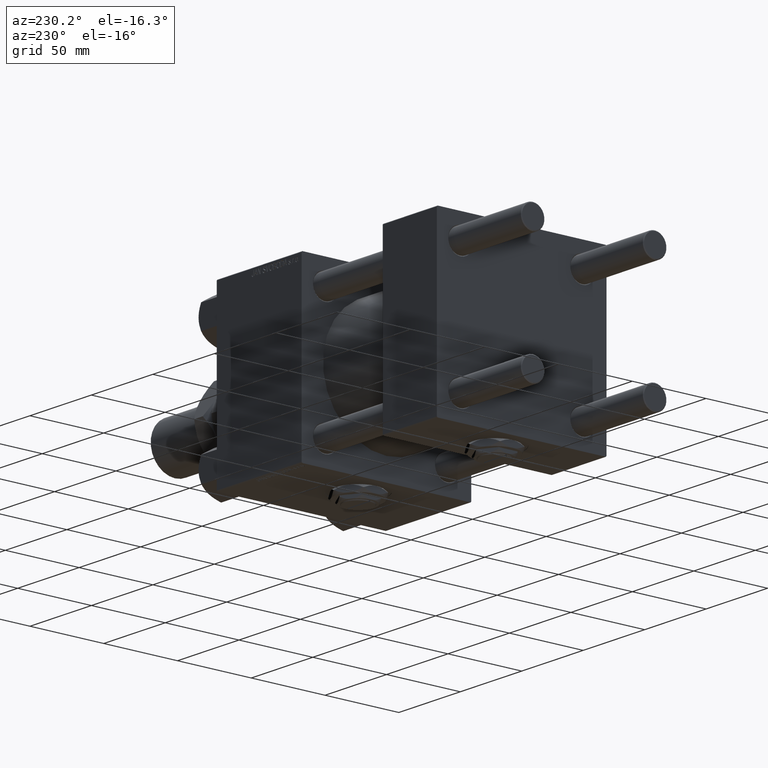
[diagram: clean part render]
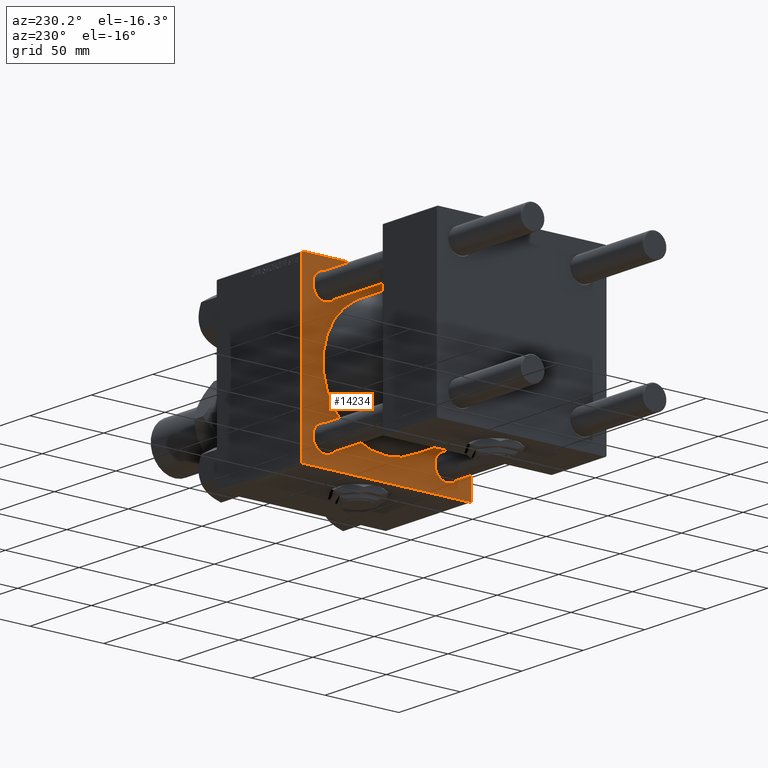
[diagram: same view with one face highlighted and labeled with its STEP entity id]
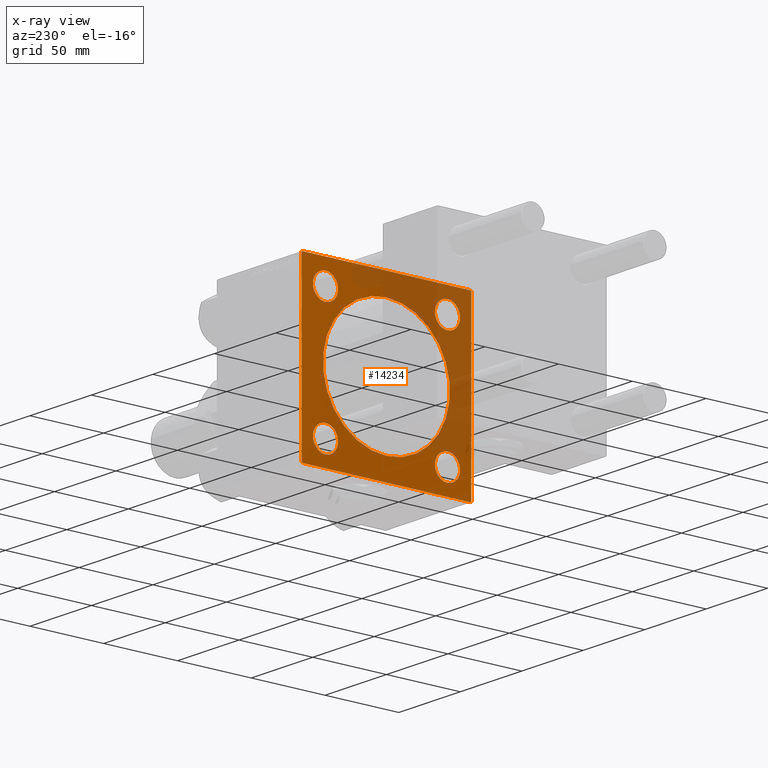
[diagram: x-ray of the same camera — body ghosted, the highlighted face saturated]
A machine part, auxiliary view. The second image highlights one B-rep face of the part: STEP entity #14234.
The next image is the same camera in x-ray: the body ghosted, the highlighted face saturated — about 38% of this face is hidden behind the body in this view.
In plain terms, the highlighted planar face has unit normal (-1, 0, 0).
Its self-contained STEP definition (entity closure, byte-faithful):
#80 = EDGE_LOOP ( 'NONE', ( #13773, #46746 ) ) ;
#424 = EDGE_CURVE ( 'NONE', #36008, #50707, #28993, .T. ) ;
#893 = CARTESIAN_POINT ( 'NONE',  ( 110.0000000000000000, 41.34999999999999432, 41.35000000000000142 ) ) ;
#982 = DIRECTION ( 'NONE',  ( 0.000000000000000000, -1.000000000000000000, -1.206764157201257291E-16 ) ) ;
#1286 = CIRCLE ( 'NONE', #2151, 43.00000000000000000 ) ;
#1448 = VERTEX_POINT ( 'NONE', #47599 ) ;
#1529 = EDGE_CURVE ( 'NONE', #25501, #38202, #15654, .T. ) ;
#1707 = CARTESIAN_POINT ( 'NONE',  ( 110.0000000000000000, 57.50000000000000000, 57.00000000000000711 ) ) ;
#1978 = ORIENTED_EDGE ( 'NONE', *, *, #4425, .T. ) ;
#2151 = AXIS2_PLACEMENT_3D ( 'NONE', #13380, #51836, #39286 ) ;
#2224 = CIRCLE ( 'NONE', #21372, 8.500000000000007105 ) ;
#3756 = AXIS2_PLACEMENT_3D ( 'NONE', #893, #9601, #30098 ) ;
#3872 = CARTESIAN_POINT ( 'NONE',  ( 110.0000000000000000, -57.49999999999999289, -56.99999999999997868 ) ) ;
#4378 = EDGE_CURVE ( 'NONE', #13017, #17928, #5188, .T. ) ;
#4401 = CIRCLE ( 'NONE', #18342, 8.500000000000007105 ) ;
#4425 = EDGE_CURVE ( 'NONE', #45716, #22131, #1286, .T. ) ;
#4584 = CARTESIAN_POINT ( 'NONE',  ( 110.0000000000000000, 41.34999999999999432, 41.35000000000000142 ) ) ;
#4875 = CARTESIAN_POINT ( 'NONE',  ( 110.0000000000000000, 57.50000000000000000, 57.50000000000000711 ) ) ;
#5188 = LINE ( 'NONE', #30317, #14317 ) ;
#5595 = LINE ( 'NONE', #9160, #43928 ) ;
#6101 = EDGE_CURVE ( 'NONE', #22131, #45716, #44888, .T. ) ;
#6352 = VERTEX_POINT ( 'NONE', #18136 ) ;
#6721 = EDGE_CURVE ( 'NONE', #53552, #38071, #2224, .T. ) ;
#7058 = DIRECTION ( 'NONE',  ( 0.000000000000000000, -0.7071067811865721087, 0.7071067811865230368 ) ) ;
#7255 = CARTESIAN_POINT ( 'NONE',  ( 110.0000000000000000, -41.34999999999998721, -49.85000000000002274 ) ) ;
#7411 = EDGE_CURVE ( 'NONE', #1448, #6352, #21411, .T. ) ;
#7662 = CARTESIAN_POINT ( 'NONE',  ( 110.0000000000000000, 57.00000000000000000, -57.49999999999996447 ) ) ;
#7919 = CARTESIAN_POINT ( 'NONE',  ( 110.0000000000000000, -41.34999999999998721, -41.35000000000000853 ) ) ;
#7997 = DIRECTION ( 'NONE',  ( 0.000000000000000000, 0.000000000000000000, 1.000000000000000000 ) ) ;
#8155 = EDGE_CURVE ( 'NONE', #37015, #24441, #39762, .T. ) ;
#8486 = VECTOR ( 'NONE', #30864, 1000.000000000000000 ) ;
#9073 = DIRECTION ( 'NONE',  ( 1.000000000000000000, -0.000000000000000000, 0.000000000000000000 ) ) ;
#9160 = CARTESIAN_POINT ( 'NONE',  ( 110.0000000000000000, 57.50000000000000000, 57.50000000000000711 ) ) ;
#9436 = ORIENTED_EDGE ( 'NONE', *, *, #20476, .T. ) ;
#9601 = DIRECTION ( 'NONE',  ( 1.000000000000000000, -0.000000000000000000, 0.000000000000000000 ) ) ;
#10264 = DIRECTION ( 'NONE',  ( -1.000000000000000000, 0.000000000000000000, -0.000000000000000000 ) ) ;
#10481 = VERTEX_POINT ( 'NONE', #3872 ) ;
#10686 = DIRECTION ( 'NONE',  ( 0.000000000000000000, 0.000000000000000000, 1.000000000000000000 ) ) ;
#10889 = CARTESIAN_POINT ( 'NONE',  ( 110.0000000000000000, -57.24999999999798916, -57.25000000000196820 ) ) ;
#10991 = CARTESIAN_POINT ( 'NONE',  ( 110.0000000000000000, 41.34999999999999432, -49.85000000000001563 ) ) ;
#11222 = CARTESIAN_POINT ( 'NONE',  ( 110.0000000000000000, -41.34999999999998721, -41.35000000000000853 ) ) ;
#11339 = CARTESIAN_POINT ( 'NONE',  ( 110.0000000000000000, 0.000000000000000000, 0.000000000000000000 ) ) ;
#11782 = VERTEX_POINT ( 'NONE', #14399 ) ;
#12417 = DIRECTION ( 'NONE',  ( 0.000000000000000000, 0.000000000000000000, -1.000000000000000000 ) ) ;
#12432 = CARTESIAN_POINT ( 'NONE',  ( 110.0000000000000000, 0.000000000000000000, 0.000000000000000000 ) ) ;
#12763 = ORIENTED_EDGE ( 'NONE', *, *, #26348, .T. ) ;
#13017 = VERTEX_POINT ( 'NONE', #50822 ) ;
#13065 = LINE ( 'NONE', #4875, #26307 ) ;
#13225 = ORIENTED_EDGE ( 'NONE', *, *, #20858, .F. ) ;
#13252 = CARTESIAN_POINT ( 'NONE',  ( 110.0000000000000000, 41.34999999999999432, -32.84999999999999432 ) ) ;
#13380 = CARTESIAN_POINT ( 'NONE',  ( 110.0000000000000000, 0.000000000000000000, 0.000000000000000000 ) ) ;
#13570 = AXIS2_PLACEMENT_3D ( 'NONE', #42425, #19158, #10686 ) ;
#13773 = ORIENTED_EDGE ( 'NONE', *, *, #6721, .T. ) ;
#13857 = DIRECTION ( 'NONE',  ( 0.000000000000000000, -1.000000000000000000, -1.206764157201257291E-16 ) ) ;
#14234 = ADVANCED_FACE ( 'NONE', ( #35104, #48701, #52268, #43540, #40250, #31303 ), #19530, .T. ) ;
#14317 = VECTOR ( 'NONE', #21582, 1000.000000000000000 ) ;
#14399 = CARTESIAN_POINT ( 'NONE',  ( 110.0000000000000000, -56.99999999999995737, -57.49999999999997868 ) ) ;
#14909 = ORIENTED_EDGE ( 'NONE', *, *, #29943, .F. ) ;
#14966 = VECTOR ( 'NONE', #13857, 1000.000000000000000 ) ;
#15234 = DIRECTION ( 'NONE',  ( 0.000000000000000000, 0.000000000000000000, -1.000000000000000000 ) ) ;
#15654 = LINE ( 'NONE', #41568, #52526 ) ;
#16276 = AXIS2_PLACEMENT_3D ( 'NONE', #16724, #9073, #7997 ) ;
#16724 = CARTESIAN_POINT ( 'NONE',  ( 110.0000000000000000, 41.34999999999999432, -41.35000000000000142 ) ) ;
#17928 = VERTEX_POINT ( 'NONE', #7662 ) ;
#17979 = AXIS2_PLACEMENT_3D ( 'NONE', #41635, #33734, #29638 ) ;
#18136 = CARTESIAN_POINT ( 'NONE',  ( 110.0000000000000000, -41.34999999999998721, 32.85000000000000142 ) ) ;
#18342 = AXIS2_PLACEMENT_3D ( 'NONE', #51683, #52483, #31520 ) ;
#18520 = EDGE_CURVE ( 'NONE', #6352, #1448, #4401, .T. ) ;
#18546 = CIRCLE ( 'NONE', #3756, 8.500000000000007105 ) ;
#18660 = ORIENTED_EDGE ( 'NONE', *, *, #7411, .T. ) ;
#19158 = DIRECTION ( 'NONE',  ( 1.000000000000000000, -0.000000000000000000, 0.000000000000000000 ) ) ;
#19373 = LINE ( 'NONE', #26491, #8486 ) ;
#19530 = PLANE ( 'NONE',  #45032 ) ;
#20019 = DIRECTION ( 'NONE',  ( 0.000000000000000000, 0.7071067811865672237, -0.7071067811865279218 ) ) ;
#20211 = ORIENTED_EDGE ( 'NONE', *, *, #8155, .T. ) ;
#20476 = EDGE_CURVE ( 'NONE', #17928, #11782, #31072, .T. ) ;
#20858 = EDGE_CURVE ( 'NONE', #35114, #10481, #48951, .T. ) ;
#21372 = AXIS2_PLACEMENT_3D ( 'NONE', #11222, #36335, #45299 ) ;
#21411 = CIRCLE ( 'NONE', #13570, 8.500000000000007105 ) ;
#21582 = DIRECTION ( 'NONE',  ( -0.000000000000000000, -0.7071067811865279218, -0.7071067811865672237 ) ) ;
#22131 = VERTEX_POINT ( 'NONE', #48040 ) ;
#22340 = DIRECTION ( 'NONE',  ( 0.000000000000000000, 0.000000000000000000, -1.000000000000000000 ) ) ;
#24248 = ORIENTED_EDGE ( 'NONE', *, *, #49734, .T. ) ;
#24441 = VERTEX_POINT ( 'NONE', #13252 ) ;
#24568 = EDGE_LOOP ( 'NONE', ( #9436, #44617, #13225, #51188, #14909, #38922, #24248, #53844 ) ) ;
#25501 = VERTEX_POINT ( 'NONE', #47555 ) ;
#26072 = ORIENTED_EDGE ( 'NONE', *, *, #18520, .T. ) ;
#26307 = VECTOR ( 'NONE', #22340, 1000.000000000000000 ) ;
#26348 = EDGE_CURVE ( 'NONE', #50707, #36008, #18546, .T. ) ;
#26384 = EDGE_LOOP ( 'NONE', ( #1978, #51260 ) ) ;
#26406 = DIRECTION ( 'NONE',  ( 1.000000000000000000, -0.000000000000000000, 0.000000000000000000 ) ) ;
#26491 = CARTESIAN_POINT ( 'NONE',  ( 110.0000000000000000, -57.25000000000117240, 57.24999999999879208 ) ) ;
#27816 = DIRECTION ( 'NONE',  ( 1.000000000000000000, 0.000000000000000000, 0.000000000000000000 ) ) ;
#28260 = CARTESIAN_POINT ( 'NONE',  ( 110.0000000000000000, -57.49999999999999289, 57.49999999999999289 ) ) ;
#28988 = ORIENTED_EDGE ( 'NONE', *, *, #39334, .T. ) ;
#28993 = CIRCLE ( 'NONE', #53374, 8.500000000000007105 ) ;
#29571 = CARTESIAN_POINT ( 'NONE',  ( 110.0000000000000000, -57.49999999999999289, 56.99999999999996447 ) ) ;
#29638 = DIRECTION ( 'NONE',  ( 0.000000000000000000, 0.000000000000000000, 1.000000000000000000 ) ) ;
#29943 = EDGE_CURVE ( 'NONE', #25501, #40957, #5595, .T. ) ;
#30098 = DIRECTION ( 'NONE',  ( 0.000000000000000000, 0.000000000000000000, 1.000000000000000000 ) ) ;
#30240 = DIRECTION ( 'NONE',  ( 0.000000000000000000, 0.000000000000000000, 1.000000000000000000 ) ) ;
#30317 = CARTESIAN_POINT ( 'NONE',  ( 110.0000000000000000, 57.25000000000157030, -57.24999999999838707 ) ) ;
#30697 = CARTESIAN_POINT ( 'NONE',  ( 110.0000000000000000, -41.34999999999998721, -32.85000000000000142 ) ) ;
#30864 = DIRECTION ( 'NONE',  ( -0.000000000000000000, 0.7071067811865328068, 0.7071067811865622277 ) ) ;
#31072 = LINE ( 'NONE', #52046, #14966 ) ;
#31113 = LINE ( 'NONE', #10889, #40001 ) ;
#31303 = FACE_OUTER_BOUND ( 'NONE', #24568, .T. ) ;
#31520 = DIRECTION ( 'NONE',  ( 0.000000000000000000, 0.000000000000000000, 1.000000000000000000 ) ) ;
#32002 = CIRCLE ( 'NONE', #16276, 8.500000000000007105 ) ;
#33734 = DIRECTION ( 'NONE',  ( 1.000000000000000000, -0.000000000000000000, 0.000000000000000000 ) ) ;
#34296 = CARTESIAN_POINT ( 'NONE',  ( 110.0000000000000000, 41.34999999999999432, 32.84999999999999432 ) ) ;
#35104 = FACE_BOUND ( 'NONE', #44419, .T. ) ;
#35114 = VERTEX_POINT ( 'NONE', #29571 ) ;
#36008 = VERTEX_POINT ( 'NONE', #51906 ) ;
#36335 = DIRECTION ( 'NONE',  ( 1.000000000000000000, -0.000000000000000000, 0.000000000000000000 ) ) ;
#36445 = ORIENTED_EDGE ( 'NONE', *, *, #424, .T. ) ;
#37015 = VERTEX_POINT ( 'NONE', #10991 ) ;
#37245 = EDGE_LOOP ( 'NONE', ( #28988, #20211 ) ) ;
#38071 = VERTEX_POINT ( 'NONE', #7255 ) ;
#38086 = CARTESIAN_POINT ( 'NONE',  ( 110.0000000000000000, 0.000000000000000000, 43.00000000000000000 ) ) ;
#38202 = VERTEX_POINT ( 'NONE', #1707 ) ;
#38279 = CIRCLE ( 'NONE', #39136, 8.500000000000007105 ) ;
#38922 = ORIENTED_EDGE ( 'NONE', *, *, #1529, .T. ) ;
#39136 = AXIS2_PLACEMENT_3D ( 'NONE', #7919, #41756, #45031 ) ;
#39286 = DIRECTION ( 'NONE',  ( 0.000000000000000000, 0.000000000000000000, -1.000000000000000000 ) ) ;
#39334 = EDGE_CURVE ( 'NONE', #24441, #37015, #32002, .T. ) ;
#39762 = CIRCLE ( 'NONE', #17979, 8.500000000000007105 ) ;
#40001 = VECTOR ( 'NONE', #7058, 1000.000000000000000 ) ;
#40222 = EDGE_CURVE ( 'NONE', #35114, #40957, #19373, .T. ) ;
#40250 = FACE_BOUND ( 'NONE', #26384, .T. ) ;
#40957 = VERTEX_POINT ( 'NONE', #53599 ) ;
#41568 = CARTESIAN_POINT ( 'NONE',  ( 110.0000000000000000, 57.24999999999840838, 57.25000000000159162 ) ) ;
#41635 = CARTESIAN_POINT ( 'NONE',  ( 110.0000000000000000, 41.34999999999999432, -41.35000000000000142 ) ) ;
#41756 = DIRECTION ( 'NONE',  ( 1.000000000000000000, -0.000000000000000000, 0.000000000000000000 ) ) ;
#42425 = CARTESIAN_POINT ( 'NONE',  ( 110.0000000000000000, -41.34999999999998721, 41.35000000000000853 ) ) ;
#43540 = FACE_BOUND ( 'NONE', #80, .T. ) ;
#43928 = VECTOR ( 'NONE', #982, 1000.000000000000000 ) ;
#44032 = AXIS2_PLACEMENT_3D ( 'NONE', #12432, #27816, #15234 ) ;
#44389 = EDGE_CURVE ( 'NONE', #38071, #53552, #38279, .T. ) ;
#44419 = EDGE_LOOP ( 'NONE', ( #18660, #26072 ) ) ;
#44552 = EDGE_CURVE ( 'NONE', #11782, #10481, #31113, .T. ) ;
#44617 = ORIENTED_EDGE ( 'NONE', *, *, #44552, .T. ) ;
#44888 = CIRCLE ( 'NONE', #44032, 43.00000000000000000 ) ;
#45031 = DIRECTION ( 'NONE',  ( 0.000000000000000000, 0.000000000000000000, 1.000000000000000000 ) ) ;
#45032 = AXIS2_PLACEMENT_3D ( 'NONE', #11339, #10264, #51729 ) ;
#45299 = DIRECTION ( 'NONE',  ( 0.000000000000000000, 0.000000000000000000, 1.000000000000000000 ) ) ;
#45716 = VERTEX_POINT ( 'NONE', #38086 ) ;
#46746 = ORIENTED_EDGE ( 'NONE', *, *, #44389, .T. ) ;
#47555 = CARTESIAN_POINT ( 'NONE',  ( 110.0000000000000000, 56.99999999999997158, 57.50000000000000711 ) ) ;
#47599 = CARTESIAN_POINT ( 'NONE',  ( 110.0000000000000000, -41.34999999999998721, 49.85000000000002274 ) ) ;
#48040 = CARTESIAN_POINT ( 'NONE',  ( 110.0000000000000000, 5.265981236333618470E-15, -43.00000000000000000 ) ) ;
#48701 = FACE_BOUND ( 'NONE', #48835, .T. ) ;
#48835 = EDGE_LOOP ( 'NONE', ( #36445, #12763 ) ) ;
#48951 = LINE ( 'NONE', #28260, #51560 ) ;
#49734 = EDGE_CURVE ( 'NONE', #38202, #13017, #13065, .T. ) ;
#50707 = VERTEX_POINT ( 'NONE', #34296 ) ;
#50822 = CARTESIAN_POINT ( 'NONE',  ( 110.0000000000000000, 57.50000000000000000, -56.99999999999994316 ) ) ;
#51188 = ORIENTED_EDGE ( 'NONE', *, *, #40222, .T. ) ;
#51260 = ORIENTED_EDGE ( 'NONE', *, *, #6101, .T. ) ;
#51560 = VECTOR ( 'NONE', #12417, 1000.000000000000000 ) ;
#51683 = CARTESIAN_POINT ( 'NONE',  ( 110.0000000000000000, -41.34999999999998721, 41.35000000000000853 ) ) ;
#51729 = DIRECTION ( 'NONE',  ( -0.000000000000000000, 0.000000000000000000, 1.000000000000000000 ) ) ;
#51836 = DIRECTION ( 'NONE',  ( 1.000000000000000000, 0.000000000000000000, 0.000000000000000000 ) ) ;
#51906 = CARTESIAN_POINT ( 'NONE',  ( 110.0000000000000000, 41.34999999999999432, 49.85000000000001563 ) ) ;
#52046 = CARTESIAN_POINT ( 'NONE',  ( 110.0000000000000000, 57.50000000000000000, -57.49999999999996447 ) ) ;
#52268 = FACE_BOUND ( 'NONE', #37245, .T. ) ;
#52483 = DIRECTION ( 'NONE',  ( 1.000000000000000000, -0.000000000000000000, 0.000000000000000000 ) ) ;
#52526 = VECTOR ( 'NONE', #20019, 1000.000000000000000 ) ;
#53374 = AXIS2_PLACEMENT_3D ( 'NONE', #4584, #26406, #30240 ) ;
#53552 = VERTEX_POINT ( 'NONE', #30697 ) ;
#53599 = CARTESIAN_POINT ( 'NONE',  ( 110.0000000000000000, -56.99999999999998579, 57.49999999999999289 ) ) ;
#53844 = ORIENTED_EDGE ( 'NONE', *, *, #4378, .T. ) ;